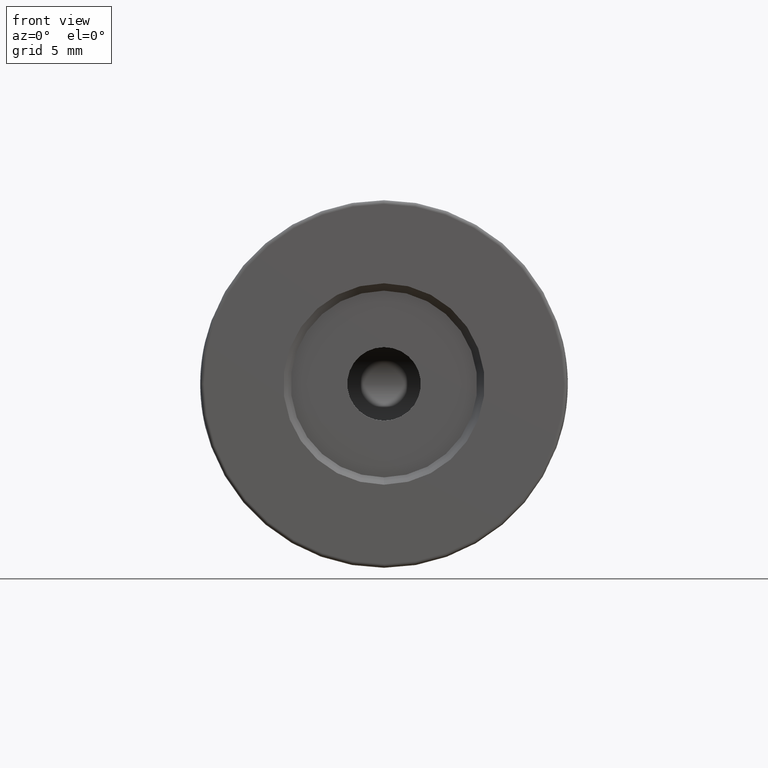
[diagram: clean part render]
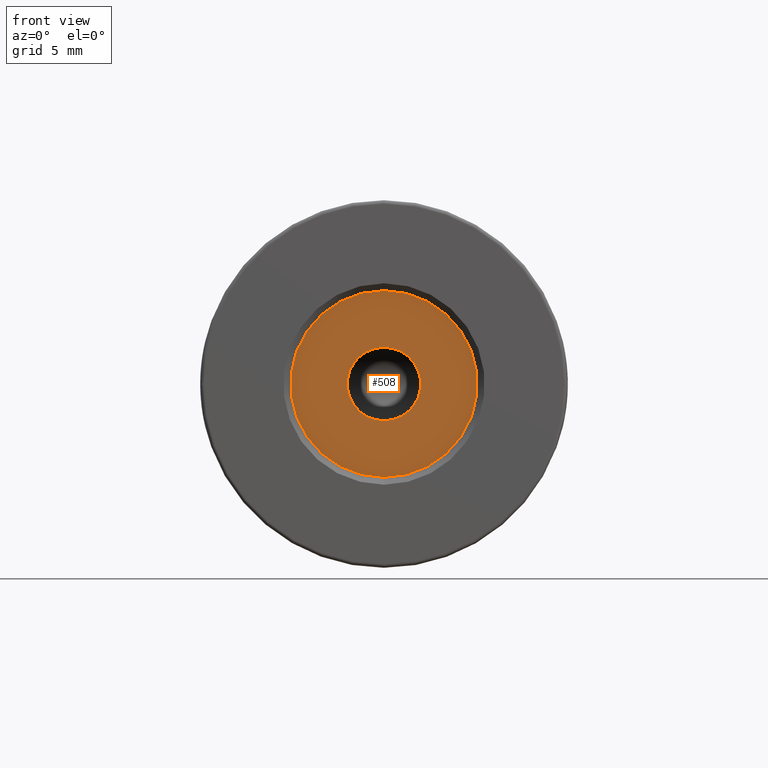
[diagram: same view with one face highlighted and labeled with its STEP entity id]
A machine part, front view. The second image highlights one B-rep face of the part: STEP entity #508.
In plain terms, the highlighted planar face has unit normal (0, -1, 0).
Its self-contained STEP definition (entity closure, byte-faithful):
#74 = CARTESIAN_POINT ( 'NONE',  ( -22.50520183104453409, -15.60174781523061327, 47.50000000000000711 ) ) ;
#93 = FACE_OUTER_BOUND ( 'NONE', #1050, .T. ) ;
#121 = DIRECTION ( 'NONE',  ( 0.0000000000000000000, 0.0000000000000000000, 1.000000000000000000 ) ) ;
#253 = ORIENTED_EDGE ( 'NONE', *, *, #2212, .F. ) ;
#262 = CIRCLE ( 'NONE', #2000, 2.499999999999995115 ) ;
#297 = AXIS2_PLACEMENT_3D ( 'NONE', #958, #1184, #3288 ) ;
#372 = CARTESIAN_POINT ( 'NONE',  ( -22.50520183104453409, -15.60174781523061327, 52.50000000000000000 ) ) ;
#397 = VERTEX_POINT ( 'NONE', #623 ) ;
#508 = ADVANCED_FACE ( 'NONE', ( #920, #93 ), #1705, .T. ) ;
#509 = CIRCLE ( 'NONE', #1460, 6.350000000000001421 ) ;
#597 = DIRECTION ( 'NONE',  ( -0.0000000000000000000, 1.000000000000000000, -0.0000000000000000000 ) ) ;
#619 = VERTEX_POINT ( 'NONE', #372 ) ;
#623 = CARTESIAN_POINT ( 'NONE',  ( -22.50520183104453409, -15.60174781523061327, 43.64999999999999858 ) ) ;
#653 = ORIENTED_EDGE ( 'NONE', *, *, #1565, .F. ) ;
#753 = DIRECTION ( 'NONE',  ( 0.0000000000000000000, -1.000000000000000000, 0.0000000000000000000 ) ) ;
#778 = ORIENTED_EDGE ( 'NONE', *, *, #1070, .F. ) ;
#830 = AXIS2_PLACEMENT_3D ( 'NONE', #2209, #597, #2397 ) ;
#920 = FACE_BOUND ( 'NONE', #2062, .T. ) ;
#958 = CARTESIAN_POINT ( 'NONE',  ( -22.50520183104453409, -15.60174781523061327, 50.00000000000000000 ) ) ;
#1032 = VERTEX_POINT ( 'NONE', #74 ) ;
#1050 = EDGE_LOOP ( 'NONE', ( #2774, #253 ) ) ;
#1070 = EDGE_CURVE ( 'NONE', #619, #1032, #2420, .T. ) ;
#1076 = DIRECTION ( 'NONE',  ( 0.0000000000000000000, 0.0000000000000000000, -1.000000000000000000 ) ) ;
#1094 = CARTESIAN_POINT ( 'NONE',  ( -22.50520183104453409, -15.60174781523061327, 50.00000000000000000 ) ) ;
#1184 = DIRECTION ( 'NONE',  ( 0.0000000000000000000, -1.000000000000000000, 0.0000000000000000000 ) ) ;
#1246 = CARTESIAN_POINT ( 'NONE',  ( -22.50520183104453409, -15.60174781523061327, 50.00000000000000000 ) ) ;
#1280 = EDGE_CURVE ( 'NONE', #397, #1814, #509, .T. ) ;
#1460 = AXIS2_PLACEMENT_3D ( 'NONE', #2296, #2517, #121 ) ;
#1565 = EDGE_CURVE ( 'NONE', #1032, #619, #262, .T. ) ;
#1705 = PLANE ( 'NONE',  #297 ) ;
#1814 = VERTEX_POINT ( 'NONE', #3383 ) ;
#2000 = AXIS2_PLACEMENT_3D ( 'NONE', #1246, #753, #2328 ) ;
#2062 = EDGE_LOOP ( 'NONE', ( #653, #778 ) ) ;
#2204 = AXIS2_PLACEMENT_3D ( 'NONE', #1094, #2936, #1076 ) ;
#2209 = CARTESIAN_POINT ( 'NONE',  ( -22.50520183104453409, -15.60174781523061327, 50.00000000000000000 ) ) ;
#2212 = EDGE_CURVE ( 'NONE', #1814, #397, #2331, .T. ) ;
#2296 = CARTESIAN_POINT ( 'NONE',  ( -22.50520183104453409, -15.60174781523061327, 50.00000000000000000 ) ) ;
#2328 = DIRECTION ( 'NONE',  ( 0.0000000000000000000, 0.0000000000000000000, -1.000000000000000000 ) ) ;
#2331 = CIRCLE ( 'NONE', #830, 6.350000000000001421 ) ;
#2397 = DIRECTION ( 'NONE',  ( 0.0000000000000000000, 0.0000000000000000000, 1.000000000000000000 ) ) ;
#2420 = CIRCLE ( 'NONE', #2204, 2.499999999999995115 ) ;
#2517 = DIRECTION ( 'NONE',  ( -0.0000000000000000000, 1.000000000000000000, -0.0000000000000000000 ) ) ;
#2774 = ORIENTED_EDGE ( 'NONE', *, *, #1280, .F. ) ;
#2936 = DIRECTION ( 'NONE',  ( 0.0000000000000000000, -1.000000000000000000, 0.0000000000000000000 ) ) ;
#3288 = DIRECTION ( 'NONE',  ( 0.0000000000000000000, 0.0000000000000000000, 1.000000000000000000 ) ) ;
#3383 = CARTESIAN_POINT ( 'NONE',  ( -22.50520183104453409, -15.60174781523061327, 56.35000000000000142 ) ) ;